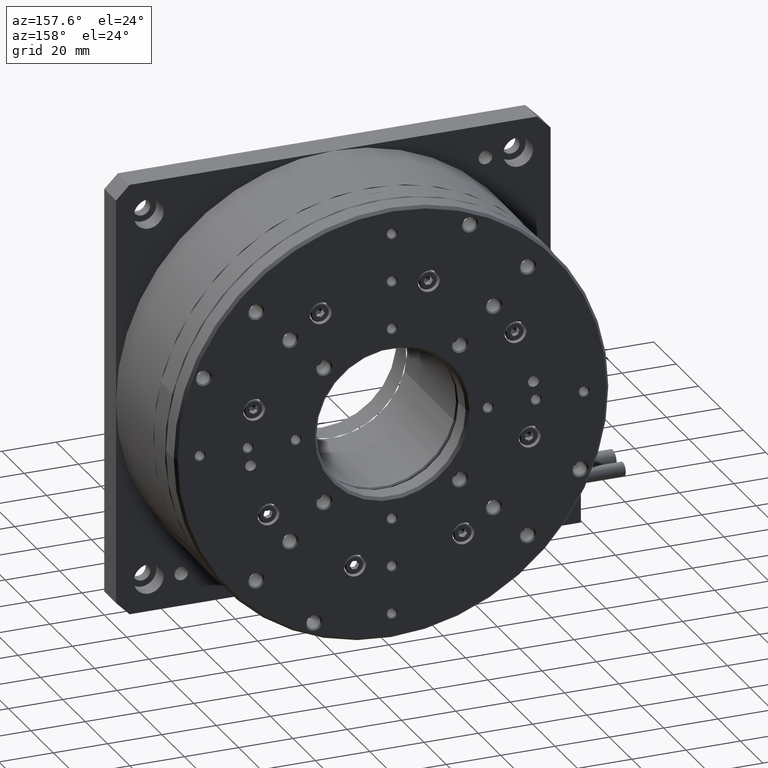
[diagram: clean part render]
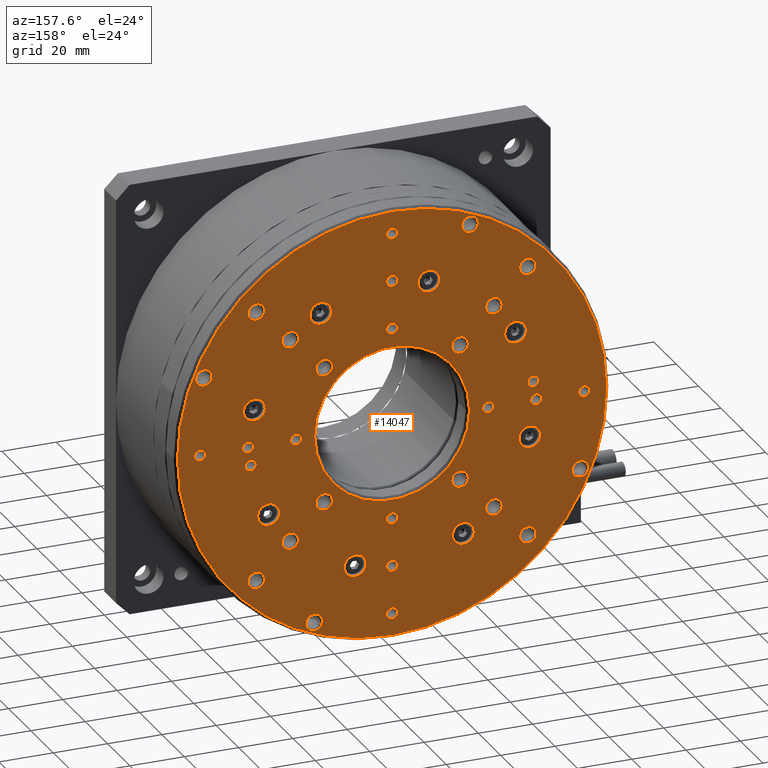
[diagram: same view with one face highlighted and labeled with its STEP entity id]
A machine part, auxiliary view. The second image highlights one B-rep face of the part: STEP entity #14047.
In plain terms, the highlighted planar face has unit normal (0, 1, -0).
Its self-contained STEP definition (entity closure, byte-faithful):
#25 = ORIENTED_EDGE ( 'NONE', *, *, #10460, .F. ) ;
#30 = DIRECTION ( 'NONE',  ( -1.000000000000000000, 0.0000000000000000000, 0.0000000000000000000 ) ) ;
#52 = DIRECTION ( 'NONE',  ( -1.000000000000000000, 0.0000000000000000000, 0.0000000000000000000 ) ) ;
#56 = DIRECTION ( 'NONE',  ( -1.000000000000000000, 0.0000000000000000000, 0.0000000000000000000 ) ) ;
#58 = VERTEX_POINT ( 'NONE', #11613 ) ;
#89 = CARTESIAN_POINT ( 'NONE',  ( 46.66966094067258600, 63.00000000000000000, -80.00000000000011400 ) ) ;
#100 = ORIENTED_EDGE ( 'NONE', *, *, #6492, .F. ) ;
#114 = AXIS2_PLACEMENT_3D ( 'NONE', #9566, #11087, #8544 ) ;
#115 = CIRCLE ( 'NONE', #16835, 79.00000000000000000 ) ;
#134 = EDGE_CURVE ( 'NONE', #4702, #17297, #4184, .T. ) ;
#154 = CARTESIAN_POINT ( 'NONE',  ( 108.0249999999999900, 62.99999999999997200, -105.0000000000001300 ) ) ;
#171 = CARTESIAN_POINT ( 'NONE',  ( 79.99999999999998600, 62.99999999999997200, -115.3553390593274800 ) ) ;
#192 = CARTESIAN_POINT ( 'NONE',  ( 130.7111058801762600, 62.99999999999997200, -66.41200013211845000 ) ) ;
#204 = ORIENTED_EDGE ( 'NONE', *, *, #7143, .T. ) ;
#225 = VERTEX_POINT ( 'NONE', #1161 ) ;
#229 = CIRCLE ( 'NONE', #1608, 28.50000000000000400 ) ;
#236 = EDGE_LOOP ( 'NONE', ( #3284, #9988 ) ) ;
#246 = DIRECTION ( 'NONE',  ( -1.000000000000000000, 0.0000000000000000000, 0.0000000000000000000 ) ) ;
#255 = DIRECTION ( 'NONE',  ( -1.000000000000000000, 0.0000000000000000000, 0.0000000000000000000 ) ) ;
#311 = CARTESIAN_POINT ( 'NONE',  ( 152.3159649383464400, 62.99999999999997200, -51.29874257261838000 ) ) ;
#315 = EDGE_CURVE ( 'NONE', #14810, #3219, #14478, .T. ) ;
#358 = CIRCLE ( 'NONE', #15688, 4.000000000000003600 ) ;
#379 = FACE_BOUND ( 'NONE', #9217, .T. ) ;
#381 = CARTESIAN_POINT ( 'NONE',  ( 79.99999999999997200, 62.99999999999998600, -80.00000000000011400 ) ) ;
#382 = ORIENTED_EDGE ( 'NONE', *, *, #3486, .F. ) ;
#409 = CIRCLE ( 'NONE', #12788, 3.024999999999999900 ) ;
#418 = CARTESIAN_POINT ( 'NONE',  ( 77.97499999999995200, 63.00000000000000000, -44.64466094067272900 ) ) ;
#438 = ORIENTED_EDGE ( 'NONE', *, *, #17068, .F. ) ;
#441 = DIRECTION ( 'NONE',  ( -1.000000000000000000, 0.0000000000000000000, 0.0000000000000000000 ) ) ;
#458 = EDGE_CURVE ( 'NONE', #3219, #14810, #13413, .T. ) ;
#489 = VERTEX_POINT ( 'NONE', #12507 ) ;
#494 = DIRECTION ( 'NONE',  ( 4.014435913841642000E-016, 1.000000000000000000, -4.301710841555254300E-016 ) ) ;
#558 = EDGE_CURVE ( 'NONE', #8777, #14308, #7084, .T. ) ;
#584 = CIRCLE ( 'NONE', #3506, 3.024999999999999900 ) ;
#602 = CIRCLE ( 'NONE', #14319, 3.024999999999999900 ) ;
#603 = DIRECTION ( 'NONE',  ( -1.000000000000000000, 0.0000000000000000000, 0.0000000000000000000 ) ) ;
#623 = ORIENTED_EDGE ( 'NONE', *, *, #13135, .F. ) ;
#665 = EDGE_LOOP ( 'NONE', ( #932, #14850 ) ) ;
#681 = CARTESIAN_POINT ( 'NONE',  ( 148.6856781186547500, 62.99999999999995700, -80.00000000000009900 ) ) ;
#711 = ORIENTED_EDGE ( 'NONE', *, *, #10161, .F. ) ;
#713 = EDGE_CURVE ( 'NONE', #14480, #14786, #2905, .T. ) ;
#715 = ORIENTED_EDGE ( 'NONE', *, *, #10185, .F. ) ;
#730 = EDGE_LOOP ( 'NONE', ( #14154, #10423 ) ) ;
#743 = CIRCLE ( 'NONE', #3924, 2.024999999999999000 ) ;
#745 = ORIENTED_EDGE ( 'NONE', *, *, #3360, .F. ) ;
#795 = EDGE_LOOP ( 'NONE', ( #15988, #2339 ) ) ;
#805 = FACE_BOUND ( 'NONE', #8850, .T. ) ;
#889 = DIRECTION ( 'NONE',  ( -1.000000000000000000, 0.0000000000000000000, 0.0000000000000000000 ) ) ;
#911 = AXIS2_PLACEMENT_3D ( 'NONE', #10697, #5234, #13454 ) ;
#918 = CARTESIAN_POINT ( 'NONE',  ( 134.0508552221250500, 62.99999999999995700, -86.85262509155288100 ) ) ;
#932 = ORIENTED_EDGE ( 'NONE', *, *, #1306, .F. ) ;
#944 = VERTEX_POINT ( 'NONE', #418 ) ;
#960 = DIRECTION ( 'NONE',  ( 4.014435913841642000E-016, 1.000000000000000000, -4.301710841555254300E-016 ) ) ;
#987 = ORIENTED_EDGE ( 'NONE', *, *, #13822, .F. ) ;
#995 = FACE_BOUND ( 'NONE', #13810, .T. ) ;
#1017 = CARTESIAN_POINT ( 'NONE',  ( 33.28889411982377300, 63.00000000000000000, -93.58799986788211800 ) ) ;
#1106 = CARTESIAN_POINT ( 'NONE',  ( 117.5000000000000100, 62.99999999999998600, -42.50000000000003600 ) ) ;
#1146 = EDGE_CURVE ( 'NONE', #3409, #15778, #12785, .T. ) ;
#1155 = EDGE_LOOP ( 'NONE', ( #100, #382 ) ) ;
#1161 = CARTESIAN_POINT ( 'NONE',  ( 39.47500000000000100, 63.00000000000001400, -42.50000000000003600 ) ) ;
#1168 = AXIS2_PLACEMENT_3D ( 'NONE', #7207, #16609, #3313 ) ;
#1209 = VERTEX_POINT ( 'NONE', #8949 ) ;
#1224 = AXIS2_PLACEMENT_3D ( 'NONE', #3146, #8227, #15034 ) ;
#1226 = CARTESIAN_POINT ( 'NONE',  ( 29.28889411982377300, 63.00000000000000000, -93.58799986788211800 ) ) ;
#1229 = FACE_BOUND ( 'NONE', #13637, .T. ) ;
#1249 = AXIS2_PLACEMENT_3D ( 'NONE', #4654, #9876, #7019 ) ;
#1256 = VERTEX_POINT ( 'NONE', #6184 ) ;
#1277 = AXIS2_PLACEMENT_3D ( 'NONE', #4985, #8971, #15711 ) ;
#1287 = ORIENTED_EDGE ( 'NONE', *, *, #8693, .F. ) ;
#1306 = EDGE_CURVE ( 'NONE', #15778, #3409, #8529, .T. ) ;
#1326 = ORIENTED_EDGE ( 'NONE', *, *, #6818, .F. ) ;
#1329 = DIRECTION ( 'NONE',  ( -1.000000000000000000, 0.0000000000000000000, 0.0000000000000000000 ) ) ;
#1368 = EDGE_LOOP ( 'NONE', ( #8497, #4565 ) ) ;
#1369 = VERTEX_POINT ( 'NONE', #14655 ) ;
#1372 = AXIS2_PLACEMENT_3D ( 'NONE', #11319, #16766, #16996 ) ;
#1496 = CIRCLE ( 'NONE', #13443, 3.024999999999999900 ) ;
#1498 = VERTEX_POINT ( 'NONE', #14711 ) ;
#1608 = AXIS2_PLACEMENT_3D ( 'NONE', #5726, #13730, #12451 ) ;
#1609 = AXIS2_PLACEMENT_3D ( 'NONE', #3304, #4652, #7558 ) ;
#1613 = EDGE_CURVE ( 'NONE', #13664, #4563, #16284, .T. ) ;
#1623 = ORIENTED_EDGE ( 'NONE', *, *, #713, .F. ) ;
#1627 = FACE_BOUND ( 'NONE', #4017, .T. ) ;
#1658 = CARTESIAN_POINT ( 'NONE',  ( 70.41200013211815200, 63.00000000000001400, -29.28889411982386900 ) ) ;
#1697 = VERTEX_POINT ( 'NONE', #12945 ) ;
#1700 = CIRCLE ( 'NONE', #6724, 3.024999999999999900 ) ;
#1714 = CARTESIAN_POINT ( 'NONE',  ( 121.4663336986829900, 62.99999999999995700, -106.2500000000001800 ) ) ;
#1723 = EDGE_CURVE ( 'NONE', #489, #14858, #11260, .T. ) ;
#1733 = CARTESIAN_POINT ( 'NONE',  ( 58.02499999999996300, 62.99999999999998600, -105.0000000000001300 ) ) ;
#1741 = CARTESIAN_POINT ( 'NONE',  ( 42.50000000000000700, 62.99999999999998600, -117.5000000000002700 ) ) ;
#1794 = EDGE_CURVE ( 'NONE', #9304, #4871, #17140, .T. ) ;
#1848 = EDGE_CURVE ( 'NONE', #11969, #9421, #9804, .T. ) ;
#1859 = VERTEX_POINT ( 'NONE', #6691 ) ;
#1862 = CARTESIAN_POINT ( 'NONE',  ( 57.74999999999973700, 62.99999999999997200, -125.4663336986830400 ) ) ;
#1890 = ORIENTED_EDGE ( 'NONE', *, *, #15766, .F. ) ;
#1896 = VERTEX_POINT ( 'NONE', #9294 ) ;
#1897 = DIRECTION ( 'NONE',  ( -1.000000000000000000, 4.014435913841638600E-016, 0.0000000000000000000 ) ) ;
#1903 = CIRCLE ( 'NONE', #11122, 3.999999999999996400 ) ;
#1969 = EDGE_LOOP ( 'NONE', ( #5956, #14286 ) ) ;
#1991 = CARTESIAN_POINT ( 'NONE',  ( 149.2909649383464300, 62.99999999999997200, -51.29874257261838000 ) ) ;
#1997 = CARTESIAN_POINT ( 'NONE',  ( 34.53366630131697000, 63.00000000000001400, -53.75000000000004300 ) ) ;
#2041 = VERTEX_POINT ( 'NONE', #16606 ) ;
#2049 = FACE_BOUND ( 'NONE', #12200, .T. ) ;
#2089 = DIRECTION ( 'NONE',  ( -1.000000000000000000, 0.0000000000000000000, 0.0000000000000000000 ) ) ;
#2156 = VERTEX_POINT ( 'NONE', #6098 ) ;
#2164 = CIRCLE ( 'NONE', #6814, 3.999999999999996400 ) ;
#2198 = DIRECTION ( 'NONE',  ( 4.014435913841642000E-016, 1.000000000000000000, -4.301710841555254300E-016 ) ) ;
#2229 = ORIENTED_EDGE ( 'NONE', *, *, #7304, .F. ) ;
#2263 = FACE_BOUND ( 'NONE', #10385, .T. ) ;
#2271 = EDGE_CURVE ( 'NONE', #2041, #2413, #5536, .T. ) ;
#2290 = CIRCLE ( 'NONE', #11248, 3.024999999999999900 ) ;
#2299 = CARTESIAN_POINT ( 'NONE',  ( 29.94914477787490600, 63.00000000000001400, -73.14737490844733300 ) ) ;
#2317 = DIRECTION ( 'NONE',  ( 4.014435913841642000E-016, 1.000000000000000000, -4.301710841555254300E-016 ) ) ;
#2322 = DIRECTION ( 'NONE',  ( 4.014435913841642000E-016, 1.000000000000000000, -4.301710841555254300E-016 ) ) ;
#2339 = ORIENTED_EDGE ( 'NONE', *, *, #1794, .F. ) ;
#2377 = ORIENTED_EDGE ( 'NONE', *, *, #7382, .F. ) ;
#2405 = CARTESIAN_POINT ( 'NONE',  ( 0.9999999999999870100, 63.00000000000001400, -80.00000000000009900 ) ) ;
#2413 = VERTEX_POINT ( 'NONE', #14727 ) ;
#2445 = DIRECTION ( 'NONE',  ( -1.000000000000000000, 0.0000000000000000000, 0.0000000000000000000 ) ) ;
#2484 = FACE_BOUND ( 'NONE', #730, .T. ) ;
#2487 = VERTEX_POINT ( 'NONE', #10737 ) ;
#2607 = DIRECTION ( 'NONE',  ( 4.014435913841642000E-016, 1.000000000000000000, -4.301710841555254300E-016 ) ) ;
#2653 = VERTEX_POINT ( 'NONE', #16645 ) ;
#2670 = AXIS2_PLACEMENT_3D ( 'NONE', #10852, #16244, #14790 ) ;
#2695 = DIRECTION ( 'NONE',  ( 4.014435913841642000E-016, 1.000000000000000000, -4.301710841555254300E-016 ) ) ;
#2750 = VERTEX_POINT ( 'NONE', #1862 ) ;
#2780 = AXIS2_PLACEMENT_3D ( 'NONE', #3064, #494, #13967 ) ;
#2782 = DIRECTION ( 'NONE',  ( -1.000000000000000000, 3.513364001978343500E-016, 0.0000000000000000000 ) ) ;
#2837 = ORIENTED_EDGE ( 'NONE', *, *, #3614, .F. ) ;
#2879 = ORIENTED_EDGE ( 'NONE', *, *, #12134, .F. ) ;
#2885 = ORIENTED_EDGE ( 'NONE', *, *, #15794, .T. ) ;
#2892 = FACE_BOUND ( 'NONE', #7997, .T. ) ;
#2905 = CIRCLE ( 'NONE', #15387, 3.025000000000000800 ) ;
#2928 = VERTEX_POINT ( 'NONE', #13536 ) ;
#2980 = DIRECTION ( 'NONE',  ( 4.014435913841642000E-016, 1.000000000000000000, -4.301710841555254300E-016 ) ) ;
#3016 = ORIENTED_EDGE ( 'NONE', *, *, #4981, .F. ) ;
#3030 = ORIENTED_EDGE ( 'NONE', *, *, #16952, .F. ) ;
#3044 = ORIENTED_EDGE ( 'NONE', *, *, #4754, .F. ) ;
#3051 = DIRECTION ( 'NONE',  ( -1.000000000000000000, 0.0000000000000000000, 0.0000000000000000000 ) ) ;
#3064 = CARTESIAN_POINT ( 'NONE',  ( 79.99999999999998600, 62.99999999999995700, -133.0330085889911500 ) ) ;
#3094 = CIRCLE ( 'NONE', #12230, 79.00000000000000000 ) ;
#3098 = FACE_BOUND ( 'NONE', #1368, .T. ) ;
#3106 = AXIS2_PLACEMENT_3D ( 'NONE', #14517, #14901, #14963 ) ;
#3108 = EDGE_CURVE ( 'NONE', #14218, #8847, #12671, .T. ) ;
#3110 = AXIS2_PLACEMENT_3D ( 'NONE', #1997, #14152, #15554 ) ;
#3120 = CARTESIAN_POINT ( 'NONE',  ( 130.0000000000000000, 62.99999999999994300, -130.0000000000001400 ) ) ;
#3146 = CARTESIAN_POINT ( 'NONE',  ( 117.5000000000000100, 62.99999999999995700, -117.5000000000002700 ) ) ;
#3202 = ORIENTED_EDGE ( 'NONE', *, *, #14121, .F. ) ;
#3216 = VERTEX_POINT ( 'NONE', #1714 ) ;
#3219 = VERTEX_POINT ( 'NONE', #4352 ) ;
#3245 = CIRCLE ( 'NONE', #7479, 2.024999999999999000 ) ;
#3284 = ORIENTED_EDGE ( 'NONE', *, *, #16884, .F. ) ;
#3304 = CARTESIAN_POINT ( 'NONE',  ( 54.99999999999997900, 63.00000000000000000, -55.00000000000012100 ) ) ;
#3313 = DIRECTION ( 'NONE',  ( -1.000000000000000000, 0.0000000000000000000, 0.0000000000000000000 ) ) ;
#3360 = EDGE_CURVE ( 'NONE', #58, #1697, #13721, .T. ) ;
#3370 = DIRECTION ( 'NONE',  ( -1.000000000000000000, 0.0000000000000000000, 0.0000000000000000000 ) ) ;
#3371 = DIRECTION ( 'NONE',  ( -1.000000000000000000, 0.0000000000000000000, 0.0000000000000000000 ) ) ;
#3375 = CARTESIAN_POINT ( 'NONE',  ( 150.7106781186547300, 62.99999999999995700, -80.00000000000009900 ) ) ;
#3400 = CARTESIAN_POINT ( 'NONE',  ( 130.7111058801762600, 62.99999999999997200, -66.41200013211845000 ) ) ;
#3409 = VERTEX_POINT ( 'NONE', #2299 ) ;
#3410 = ORIENTED_EDGE ( 'NONE', *, *, #458, .F. ) ;
#3478 = AXIS2_PLACEMENT_3D ( 'NONE', #9353, #5356, #8100 ) ;
#3486 = EDGE_CURVE ( 'NONE', #4750, #1498, #12254, .T. ) ;
#3492 = ORIENTED_EDGE ( 'NONE', *, *, #8273, .F. ) ;
#3506 = AXIS2_PLACEMENT_3D ( 'NONE', #11680, #14364, #13013 ) ;
#3523 = VERTEX_POINT ( 'NONE', #5381 ) ;
#3528 = ORIENTED_EDGE ( 'NONE', *, *, #9427, .F. ) ;
#3570 = CARTESIAN_POINT ( 'NONE',  ( 101.9749999999999900, 62.99999999999997200, -105.0000000000001300 ) ) ;
#3593 = CARTESIAN_POINT ( 'NONE',  ( 149.2909649383464300, 62.99999999999997200, -51.29874257261838000 ) ) ;
#3604 = DIRECTION ( 'NONE',  ( 4.014435913841642000E-016, 1.000000000000000000, -4.301710841555254300E-016 ) ) ;
#3614 = EDGE_CURVE ( 'NONE', #9641, #2156, #14762, .T. ) ;
#3668 = DIRECTION ( 'NONE',  ( -1.000000000000000000, 0.0000000000000000000, 0.0000000000000000000 ) ) ;
#3671 = CARTESIAN_POINT ( 'NONE',  ( 150.7106781186547300, 62.99999999999995700, -80.00000000000009900 ) ) ;
#3697 = EDGE_LOOP ( 'NONE', ( #13661, #711 ) ) ;
#3800 = EDGE_CURVE ( 'NONE', #15587, #2653, #13705, .T. ) ;
#3802 = CARTESIAN_POINT ( 'NONE',  ( 54.99999999999996400, 62.99999999999998600, -105.0000000000001300 ) ) ;
#3849 = AXIS2_PLACEMENT_3D ( 'NONE', #16866, #8568, #12664 ) ;
#3858 = CARTESIAN_POINT ( 'NONE',  ( 105.0000000000000000, 62.99999999999997200, -105.0000000000001300 ) ) ;
#3859 = CARTESIAN_POINT ( 'NONE',  ( 9.289321881345207600, 63.00000000000001400, -80.00000000000012800 ) ) ;
#3924 = AXIS2_PLACEMENT_3D ( 'NONE', #7025, #8616, #12645 ) ;
#3934 = DIRECTION ( 'NONE',  ( 4.014435913841642000E-016, 1.000000000000000000, -4.301710841555254300E-016 ) ) ;
#3942 = AXIS2_PLACEMENT_3D ( 'NONE', #4499, #13875, #15217 ) ;
#3993 = ORIENTED_EDGE ( 'NONE', *, *, #16127, .F. ) ;
#4000 = DIRECTION ( 'NONE',  ( -1.000000000000000000, 0.0000000000000000000, 0.0000000000000000000 ) ) ;
#4017 = EDGE_LOOP ( 'NONE', ( #12650, #6898 ) ) ;
#4046 = DIRECTION ( 'NONE',  ( -1.000000000000000000, 0.0000000000000000000, 0.0000000000000000000 ) ) ;
#4056 = AXIS2_PLACEMENT_3D ( 'NONE', #10806, #16312, #9704 ) ;
#4098 = EDGE_CURVE ( 'NONE', #8847, #14218, #14329, .T. ) ;
#4104 = DIRECTION ( 'NONE',  ( -1.000000000000000000, 0.0000000000000000000, 0.0000000000000000000 ) ) ;
#4150 = EDGE_LOOP ( 'NONE', ( #623, #1890 ) ) ;
#4177 = CARTESIAN_POINT ( 'NONE',  ( 126.9750000000000100, 62.99999999999998600, -30.00000000000010300 ) ) ;
#4180 = CARTESIAN_POINT ( 'NONE',  ( 135.0580085889910400, 62.99999999999997200, -80.00000000000012800 ) ) ;
#4184 = CIRCLE ( 'NONE', #12819, 3.024999999999999900 ) ;
#4223 = DIRECTION ( 'NONE',  ( 4.014435913841642000E-016, 1.000000000000000000, -4.301710841555254300E-016 ) ) ;
#4232 = DIRECTION ( 'NONE',  ( -1.000000000000000000, 0.0000000000000000000, 0.0000000000000000000 ) ) ;
#4236 = CARTESIAN_POINT ( 'NONE',  ( 79.99999999999998600, 62.99999999999995700, -133.0330085889911500 ) ) ;
#4301 = CARTESIAN_POINT ( 'NONE',  ( 25.94914477787490300, 63.00000000000001400, -73.14737490844733300 ) ) ;
#4317 = DIRECTION ( 'NONE',  ( -1.000000000000000000, 0.0000000000000000000, 0.0000000000000000000 ) ) ;
#4352 = CARTESIAN_POINT ( 'NONE',  ( 82.02499999999996300, 63.00000000000001400, -26.96699141100906900 ) ) ;
#4361 = FACE_BOUND ( 'NONE', #12976, .T. ) ;
#4378 = CARTESIAN_POINT ( 'NONE',  ( 77.97499999999999400, 62.99999999999995700, -133.0330085889911500 ) ) ;
#4394 = CARTESIAN_POINT ( 'NONE',  ( 133.0250000000000100, 62.99999999999998600, -30.00000000000010300 ) ) ;
#4405 = DIRECTION ( 'NONE',  ( 4.014435913841642000E-016, 1.000000000000000000, -4.301710841555254300E-016 ) ) ;
#4427 = AXIS2_PLACEMENT_3D ( 'NONE', #5332, #15961, #8077 ) ;
#4499 = CARTESIAN_POINT ( 'NONE',  ( 44.64466094067258700, 63.00000000000000000, -80.00000000000011400 ) ) ;
#4519 = DIRECTION ( 'NONE',  ( 4.014435913841642000E-016, 1.000000000000000000, -4.301710841555254300E-016 ) ) ;
#4563 = VERTEX_POINT ( 'NONE', #7986 ) ;
#4565 = ORIENTED_EDGE ( 'NONE', *, *, #9075, .F. ) ;
#4589 = CARTESIAN_POINT ( 'NONE',  ( 49.74999999999974400, 62.99999999999997200, -125.4663336986830400 ) ) ;
#4621 = CIRCLE ( 'NONE', #6839, 3.024999999999999900 ) ;
#4652 = DIRECTION ( 'NONE',  ( 4.014435913841642000E-016, 1.000000000000000000, -4.301710841555254300E-016 ) ) ;
#4654 = CARTESIAN_POINT ( 'NONE',  ( 125.4663336986829900, 62.99999999999995700, -106.2500000000001800 ) ) ;
#4702 = VERTEX_POINT ( 'NONE', #5780 ) ;
#4710 = EDGE_CURVE ( 'NONE', #12856, #11469, #14518, .T. ) ;
#4731 = DIRECTION ( 'NONE',  ( 4.014435913841642000E-016, 1.000000000000000000, -4.301710841555254300E-016 ) ) ;
#4750 = VERTEX_POINT ( 'NONE', #5963 ) ;
#4751 = AXIS2_PLACEMENT_3D ( 'NONE', #1741, #8519, #15176 ) ;
#4754 = EDGE_CURVE ( 'NONE', #15970, #15192, #1496, .T. ) ;
#4788 = FACE_BOUND ( 'NONE', #795, .T. ) ;
#4847 = CARTESIAN_POINT ( 'NONE',  ( 105.0000000000000000, 62.99999999999997200, -105.0000000000001300 ) ) ;
#4853 = CIRCLE ( 'NONE', #14208, 3.024999999999999900 ) ;
#4871 = VERTEX_POINT ( 'NONE', #3570 ) ;
#4882 = DIRECTION ( 'NONE',  ( -1.000000000000000000, 0.0000000000000000000, 0.0000000000000000000 ) ) ;
#4888 = DIRECTION ( 'NONE',  ( -1.000000000000000000, 0.0000000000000000000, 0.0000000000000000000 ) ) ;
#4924 = CARTESIAN_POINT ( 'NONE',  ( 39.47500000000000900, 62.99999999999998600, -117.5000000000002700 ) ) ;
#4957 = AXIS2_PLACEMENT_3D ( 'NONE', #13377, #6886, #10896 ) ;
#4977 = FACE_BOUND ( 'NONE', #10147, .T. ) ;
#4978 = EDGE_CURVE ( 'NONE', #10761, #11345, #14155, .T. ) ;
#4981 = EDGE_CURVE ( 'NONE', #2156, #9641, #9515, .T. ) ;
#4985 = CARTESIAN_POINT ( 'NONE',  ( 26.96699141100892300, 63.00000000000000000, -80.00000000000009900 ) ) ;
#5025 = CIRCLE ( 'NONE', #6884, 3.024999999999999900 ) ;
#5166 = ORIENTED_EDGE ( 'NONE', *, *, #16446, .F. ) ;
#5173 = DIRECTION ( 'NONE',  ( 4.014435913841642000E-016, 1.000000000000000000, -4.301710841555254300E-016 ) ) ;
#5197 = FACE_BOUND ( 'NONE', #7545, .T. ) ;
#5229 = CIRCLE ( 'NONE', #4957, 3.024999999999999900 ) ;
#5233 = VERTEX_POINT ( 'NONE', #4378 ) ;
#5234 = DIRECTION ( 'NONE',  ( 4.014435913841642000E-016, 1.000000000000000000, -4.301710841555254300E-016 ) ) ;
#5276 = VERTEX_POINT ( 'NONE', #12659 ) ;
#5312 = CARTESIAN_POINT ( 'NONE',  ( 79.99999999999994300, 63.00000000000001400, -9.289321881345360400 ) ) ;
#5332 = CARTESIAN_POINT ( 'NONE',  ( 34.53366630131697000, 63.00000000000001400, -53.75000000000004300 ) ) ;
#5356 = DIRECTION ( 'NONE',  ( 4.014435913841642000E-016, 1.000000000000000000, -4.301710841555254300E-016 ) ) ;
#5359 = CIRCLE ( 'NONE', #8484, 4.000000000000003600 ) ;
#5381 = CARTESIAN_POINT ( 'NONE',  ( 130.0508552221250200, 62.99999999999995700, -86.85262509155288100 ) ) ;
#5391 = DIRECTION ( 'NONE',  ( 4.014435913841642000E-016, 1.000000000000000000, -4.301710841555254300E-016 ) ) ;
#5394 = DIRECTION ( 'NONE',  ( -1.000000000000000000, 0.0000000000000000000, 0.0000000000000000000 ) ) ;
#5432 = VERTEX_POINT ( 'NONE', #7632 ) ;
#5536 = CIRCLE ( 'NONE', #1277, 2.024999999999999000 ) ;
#5571 = EDGE_CURVE ( 'NONE', #2413, #2041, #10268, .T. ) ;
#5592 = FACE_BOUND ( 'NONE', #5673, .T. ) ;
#5605 = ORIENTED_EDGE ( 'NONE', *, *, #1848, .F. ) ;
#5649 = DIRECTION ( 'NONE',  ( 4.014435913841642000E-016, 1.000000000000000000, -4.301710841555254300E-016 ) ) ;
#5659 = DIRECTION ( 'NONE',  ( -1.000000000000000000, 0.0000000000000000000, 0.0000000000000000000 ) ) ;
#5673 = EDGE_LOOP ( 'NONE', ( #14069, #11751 ) ) ;
#5698 = ORIENTED_EDGE ( 'NONE', *, *, #15582, .T. ) ;
#5726 = CARTESIAN_POINT ( 'NONE',  ( 79.99999999999997200, 62.99999999999998600, -80.00000000000011400 ) ) ;
#5746 = ORIENTED_EDGE ( 'NONE', *, *, #13039, .T. ) ;
#5780 = CARTESIAN_POINT ( 'NONE',  ( 114.4750000000000200, 62.99999999999998600, -42.50000000000003600 ) ) ;
#5791 = VERTEX_POINT ( 'NONE', #5824 ) ;
#5824 = CARTESIAN_POINT ( 'NONE',  ( 126.7111058801762600, 62.99999999999997200, -66.41200013211845000 ) ) ;
#5845 = EDGE_CURVE ( 'NONE', #1859, #2928, #9609, .T. ) ;
#5875 = ORIENTED_EDGE ( 'NONE', *, *, #3800, .F. ) ;
#5882 = ORIENTED_EDGE ( 'NONE', *, *, #13374, .F. ) ;
#5924 = VERTEX_POINT ( 'NONE', #9962 ) ;
#5934 = PLANE ( 'NONE',  #6787 ) ;
#5956 = ORIENTED_EDGE ( 'NONE', *, *, #8956, .F. ) ;
#5963 = CARTESIAN_POINT ( 'NONE',  ( 38.53366630131696300, 63.00000000000001400, -53.75000000000004300 ) ) ;
#5965 = DIRECTION ( 'NONE',  ( -1.000000000000000000, 0.0000000000000000000, 0.0000000000000000000 ) ) ;
#5984 = ORIENTED_EDGE ( 'NONE', *, *, #315, .F. ) ;
#5991 = CARTESIAN_POINT ( 'NONE',  ( 33.02499999999995600, 63.00000000000002800, -30.00000000000010300 ) ) ;
#6031 = FACE_BOUND ( 'NONE', #7761, .T. ) ;
#6033 = DIRECTION ( 'NONE',  ( 4.014435913841642000E-016, 1.000000000000000000, -4.301710841555254300E-016 ) ) ;
#6063 = EDGE_LOOP ( 'NONE', ( #5882, #3993 ) ) ;
#6069 = CIRCLE ( 'NONE', #3942, 2.024999999999999000 ) ;
#6086 = CARTESIAN_POINT ( 'NONE',  ( 7.684035061653477600, 63.00000000000000000, -108.7012574273819200 ) ) ;
#6098 = CARTESIAN_POINT ( 'NONE',  ( 25.28889411982377300, 63.00000000000000000, -93.58799986788211800 ) ) ;
#6100 = DIRECTION ( 'NONE',  ( -1.000000000000000000, 0.0000000000000000000, 0.0000000000000000000 ) ) ;
#6172 = DIRECTION ( 'NONE',  ( -1.000000000000000000, 0.0000000000000000000, 0.0000000000000000000 ) ) ;
#6181 = DIRECTION ( 'NONE',  ( 4.014435913841642000E-016, 1.000000000000000000, -4.301710841555254300E-016 ) ) ;
#6184 = CARTESIAN_POINT ( 'NONE',  ( 45.52500000000001300, 62.99999999999998600, -117.5000000000002700 ) ) ;
#6187 = DIRECTION ( 'NONE',  ( 4.014435913841642000E-016, 1.000000000000000000, -4.301710841555254300E-016 ) ) ;
#6221 = CARTESIAN_POINT ( 'NONE',  ( 66.41200013211815200, 63.00000000000001400, -29.28889411982386900 ) ) ;
#6228 = FACE_BOUND ( 'NONE', #8194, .T. ) ;
#6230 = DIRECTION ( 'NONE',  ( 4.014435913841642000E-016, 1.000000000000000000, -4.301710841555254300E-016 ) ) ;
#6241 = CARTESIAN_POINT ( 'NONE',  ( 51.29874257261816700, 63.00000000000002800, -10.70903506165361900 ) ) ;
#6264 = ORIENTED_EDGE ( 'NONE', *, *, #15959, .F. ) ;
#6272 = EDGE_CURVE ( 'NONE', #5791, #1896, #358, .T. ) ;
#6305 = AXIS2_PLACEMENT_3D ( 'NONE', #6943, #2980, #4104 ) ;
#6308 = EDGE_CURVE ( 'NONE', #5233, #5924, #14619, .T. ) ;
#6315 = CIRCLE ( 'NONE', #1249, 4.000000000000003600 ) ;
#6377 = VERTEX_POINT ( 'NONE', #12640 ) ;
#6378 = VERTEX_POINT ( 'NONE', #311 ) ;
#6433 = CIRCLE ( 'NONE', #14913, 2.025000000000000800 ) ;
#6435 = AXIS2_PLACEMENT_3D ( 'NONE', #16765, #4519, #15354 ) ;
#6461 = AXIS2_PLACEMENT_3D ( 'NONE', #3859, #14529, #14354 ) ;
#6488 = CIRCLE ( 'NONE', #6569, 2.000000000000001800 ) ;
#6492 = EDGE_CURVE ( 'NONE', #1498, #4750, #14198, .T. ) ;
#6543 = AXIS2_PLACEMENT_3D ( 'NONE', #4847, #6230, #6172 ) ;
#6556 = CARTESIAN_POINT ( 'NONE',  ( 130.0000000000000000, 62.99999999999998600, -30.00000000000010300 ) ) ;
#6559 = DIRECTION ( 'NONE',  ( 4.014435913841642000E-016, 1.000000000000000000, -4.301710841555254300E-016 ) ) ;
#6569 = AXIS2_PLACEMENT_3D ( 'NONE', #11976, #3934, #11917 ) ;
#6570 = AXIS2_PLACEMENT_3D ( 'NONE', #6241, #6181, #7529 ) ;
#6582 = CARTESIAN_POINT ( 'NONE',  ( 120.5250000000000200, 62.99999999999998600, -42.50000000000003600 ) ) ;
#6587 = DIRECTION ( 'NONE',  ( 4.014435913841642000E-016, 1.000000000000000000, -4.301710841555254300E-016 ) ) ;
#6640 = AXIS2_PLACEMENT_3D ( 'NONE', #3802, #6587, #12009 ) ;
#6690 = EDGE_CURVE ( 'NONE', #14085, #3216, #10613, .T. ) ;
#6691 = CARTESIAN_POINT ( 'NONE',  ( 120.5250000000000100, 62.99999999999995700, -117.5000000000002700 ) ) ;
#6705 = DIRECTION ( 'NONE',  ( 4.014435913841642000E-016, 1.000000000000000000, -4.301710841555254300E-016 ) ) ;
#6716 = AXIS2_PLACEMENT_3D ( 'NONE', #171, #10957, #8416 ) ;
#6724 = AXIS2_PLACEMENT_3D ( 'NONE', #3593, #10110, #3371 ) ;
#6725 = AXIS2_PLACEMENT_3D ( 'NONE', #12385, #8422, #4232 ) ;
#6742 = AXIS2_PLACEMENT_3D ( 'NONE', #13544, #13494, #16065 ) ;
#6750 = EDGE_CURVE ( 'NONE', #5924, #5233, #7008, .T. ) ;
#6759 = VERTEX_POINT ( 'NONE', #8247 ) ;
#6787 = AXIS2_PLACEMENT_3D ( 'NONE', #381, #12473, #1897 ) ;
#6814 = AXIS2_PLACEMENT_3D ( 'NONE', #17284, #6705, #2445 ) ;
#6818 = EDGE_CURVE ( 'NONE', #1896, #5791, #5359, .T. ) ;
#6839 = AXIS2_PLACEMENT_3D ( 'NONE', #14091, #6033, #603 ) ;
#6845 = DIRECTION ( 'NONE',  ( -1.000000000000000000, 0.0000000000000000000, 0.0000000000000000000 ) ) ;
#6884 = AXIS2_PLACEMENT_3D ( 'NONE', #14252, #15699, #7711 ) ;
#6886 = DIRECTION ( 'NONE',  ( 4.014435913841642000E-016, 1.000000000000000000, -4.301710841555254300E-016 ) ) ;
#6898 = ORIENTED_EDGE ( 'NONE', *, *, #11457, .F. ) ;
#6926 = EDGE_LOOP ( 'NONE', ( #16128, #8842 ) ) ;
#6943 = CARTESIAN_POINT ( 'NONE',  ( 10.70903506165347900, 63.00000000000000000, -108.7012574273819200 ) ) ;
#6967 = AXIS2_PLACEMENT_3D ( 'NONE', #6221, #2317, #10413 ) ;
#7006 = AXIS2_PLACEMENT_3D ( 'NONE', #7601, #6187, #889 ) ;
#7008 = CIRCLE ( 'NONE', #13015, 2.024999999999999000 ) ;
#7011 = CARTESIAN_POINT ( 'NONE',  ( 13.73403506165347700, 63.00000000000000000, -108.7012574273819200 ) ) ;
#7019 = DIRECTION ( 'NONE',  ( -1.000000000000000000, 0.0000000000000000000, 0.0000000000000000000 ) ) ;
#7025 = CARTESIAN_POINT ( 'NONE',  ( 115.3553390593273500, 62.99999999999997200, -80.00000000000011400 ) ) ;
#7079 = CARTESIAN_POINT ( 'NONE',  ( 82.02499999999994900, 63.00000000000000000, -44.64466094067272900 ) ) ;
#7084 = CIRCLE ( 'NONE', #14505, 2.024999999999999000 ) ;
#7143 = EDGE_CURVE ( 'NONE', #13257, #12172, #115, .T. ) ;
#7207 = CARTESIAN_POINT ( 'NONE',  ( 80.00000000000000000, 62.99999999999995700, -150.7106781186548400 ) ) ;
#7211 = DIRECTION ( 'NONE',  ( 4.014435913841642000E-016, 1.000000000000000000, -4.301710841555254300E-016 ) ) ;
#7274 = CARTESIAN_POINT ( 'NONE',  ( 106.2500000000005300, 63.00000000000000000, -34.53366630131738200 ) ) ;
#7304 = EDGE_CURVE ( 'NONE', #4563, #13664, #743, .T. ) ;
#7360 = EDGE_CURVE ( 'NONE', #13513, #8589, #3245, .T. ) ;
#7382 = EDGE_CURVE ( 'NONE', #9421, #11969, #15622, .T. ) ;
#7393 = DIRECTION ( 'NONE',  ( -1.000000000000000000, 0.0000000000000000000, 0.0000000000000000000 ) ) ;
#7396 = EDGE_LOOP ( 'NONE', ( #11000, #987 ) ) ;
#7412 = AXIS2_PLACEMENT_3D ( 'NONE', #9192, #9139, #7708 ) ;
#7414 = ORIENTED_EDGE ( 'NONE', *, *, #12105, .F. ) ;
#7437 = DIRECTION ( 'NONE',  ( 4.014435913841642000E-016, 1.000000000000000000, -4.301710841555254300E-016 ) ) ;
#7478 = CARTESIAN_POINT ( 'NONE',  ( 77.97499999999996600, 63.00000000000001400, -26.96699141100906900 ) ) ;
#7479 = AXIS2_PLACEMENT_3D ( 'NONE', #3375, #7437, #14032 ) ;
#7484 = FACE_BOUND ( 'NONE', #13720, .T. ) ;
#7494 = CIRCLE ( 'NONE', #7006, 3.024999999999999900 ) ;
#7529 = DIRECTION ( 'NONE',  ( -1.000000000000000000, 0.0000000000000000000, 0.0000000000000000000 ) ) ;
#7545 = EDGE_LOOP ( 'NONE', ( #5605, #2377 ) ) ;
#7558 = DIRECTION ( 'NONE',  ( -1.000000000000000000, 0.0000000000000000000, 0.0000000000000000000 ) ) ;
#7565 = CARTESIAN_POINT ( 'NONE',  ( 130.0000000000000000, 62.99999999999994300, -130.0000000000001400 ) ) ;
#7601 = CARTESIAN_POINT ( 'NONE',  ( 105.0000000000000000, 62.99999999999998600, -55.00000000000012100 ) ) ;
#7631 = DIRECTION ( 'NONE',  ( -1.000000000000000000, 0.0000000000000000000, 0.0000000000000000000 ) ) ;
#7632 = CARTESIAN_POINT ( 'NONE',  ( 82.02499999999999100, 62.99999999999997200, -115.3553390593274800 ) ) ;
#7681 = AXIS2_PLACEMENT_3D ( 'NONE', #7565, #11419, #4888 ) ;
#7708 = DIRECTION ( 'NONE',  ( -1.000000000000000000, 0.0000000000000000000, 0.0000000000000000000 ) ) ;
#7710 = AXIS2_PLACEMENT_3D ( 'NONE', #15007, #9694, #255 ) ;
#7711 = DIRECTION ( 'NONE',  ( -1.000000000000000000, 0.0000000000000000000, 0.0000000000000000000 ) ) ;
#7739 = ORIENTED_EDGE ( 'NONE', *, *, #15215, .F. ) ;
#7761 = EDGE_LOOP ( 'NONE', ( #5875, #3030 ) ) ;
#7762 = ORIENTED_EDGE ( 'NONE', *, *, #10578, .F. ) ;
#7840 = EDGE_LOOP ( 'NONE', ( #5698, #204 ) ) ;
#7850 = AXIS2_PLACEMENT_3D ( 'NONE', #3671, #17025, #10406 ) ;
#7899 = CARTESIAN_POINT ( 'NONE',  ( 33.02499999999995600, 62.99999999999998600, -130.0000000000001400 ) ) ;
#7986 = CARTESIAN_POINT ( 'NONE',  ( 117.3803390593273500, 62.99999999999997200, -80.00000000000011400 ) ) ;
#7997 = EDGE_LOOP ( 'NONE', ( #9015, #25 ) ) ;
#8030 = AXIS2_PLACEMENT_3D ( 'NONE', #1226, #16049, #52 ) ;
#8062 = DIRECTION ( 'NONE',  ( 4.014435913841642000E-016, 1.000000000000000000, -4.301710841555254300E-016 ) ) ;
#8077 = DIRECTION ( 'NONE',  ( -1.000000000000000000, 0.0000000000000000000, 0.0000000000000000000 ) ) ;
#8100 = DIRECTION ( 'NONE',  ( -1.000000000000000000, 0.0000000000000000000, 0.0000000000000000000 ) ) ;
#8106 = FACE_BOUND ( 'NONE', #1969, .T. ) ;
#8165 = DIRECTION ( 'NONE',  ( 4.014435913841642000E-016, 1.000000000000000000, -4.301710841555254300E-016 ) ) ;
#8192 = CARTESIAN_POINT ( 'NONE',  ( 125.4663336986829900, 62.99999999999995700, -106.2500000000001800 ) ) ;
#8194 = EDGE_LOOP ( 'NONE', ( #5984, #3410 ) ) ;
#8197 = AXIS2_PLACEMENT_3D ( 'NONE', #3858, #5173, #1329 ) ;
#8227 = DIRECTION ( 'NONE',  ( 4.014435913841642000E-016, 1.000000000000000000, -4.301710841555254300E-016 ) ) ;
#8247 = CARTESIAN_POINT ( 'NONE',  ( 51.49999999999997200, 63.00000000000000000, -80.00000000000011400 ) ) ;
#8273 = EDGE_CURVE ( 'NONE', #2750, #15943, #2164, .T. ) ;
#8325 = FACE_BOUND ( 'NONE', #3697, .T. ) ;
#8378 = AXIS2_PLACEMENT_3D ( 'NONE', #12702, #14102, #4882 ) ;
#8416 = DIRECTION ( 'NONE',  ( -1.000000000000000000, 0.0000000000000000000, 0.0000000000000000000 ) ) ;
#8422 = DIRECTION ( 'NONE',  ( 4.014435913841642000E-016, 1.000000000000000000, -4.301710841555254300E-016 ) ) ;
#8484 = AXIS2_PLACEMENT_3D ( 'NONE', #3400, #4731, #4317 ) ;
#8497 = ORIENTED_EDGE ( 'NONE', *, *, #13072, .F. ) ;
#8505 = DIRECTION ( 'NONE',  ( -1.000000000000000000, 0.0000000000000000000, 0.0000000000000000000 ) ) ;
#8519 = DIRECTION ( 'NONE',  ( 4.014435913841642000E-016, 1.000000000000000000, -4.301710841555254300E-016 ) ) ;
#8526 = FACE_BOUND ( 'NONE', #1155, .T. ) ;
#8529 = CIRCLE ( 'NONE', #7412, 2.000000000000001800 ) ;
#8544 = DIRECTION ( 'NONE',  ( -1.000000000000000000, 0.0000000000000000000, 0.0000000000000000000 ) ) ;
#8568 = DIRECTION ( 'NONE',  ( 4.014435913841642000E-016, 1.000000000000000000, -4.301710841555254300E-016 ) ) ;
#8589 = VERTEX_POINT ( 'NONE', #681 ) ;
#8616 = DIRECTION ( 'NONE',  ( 4.014435913841642000E-016, 1.000000000000000000, -4.301710841555254300E-016 ) ) ;
#8622 = ORIENTED_EDGE ( 'NONE', *, *, #5571, .F. ) ;
#8662 = EDGE_LOOP ( 'NONE', ( #13081, #8622 ) ) ;
#8693 = EDGE_CURVE ( 'NONE', #8589, #13513, #10740, .T. ) ;
#8758 = FACE_BOUND ( 'NONE', #11172, .T. ) ;
#8777 = VERTEX_POINT ( 'NONE', #89 ) ;
#8805 = CARTESIAN_POINT ( 'NONE',  ( 131.0080085889910300, 62.99999999999997200, -80.00000000000012800 ) ) ;
#8842 = ORIENTED_EDGE ( 'NONE', *, *, #12083, .F. ) ;
#8847 = VERTEX_POINT ( 'NONE', #4180 ) ;
#8850 = EDGE_LOOP ( 'NONE', ( #7762, #7739 ) ) ;
#8855 = EDGE_CURVE ( 'NONE', #14858, #489, #9914, .T. ) ;
#8870 = CARTESIAN_POINT ( 'NONE',  ( 42.50000000000000000, 63.00000000000001400, -42.50000000000003600 ) ) ;
#8922 = CARTESIAN_POINT ( 'NONE',  ( 108.0249999999999900, 62.99999999999998600, -55.00000000000012100 ) ) ;
#8949 = CARTESIAN_POINT ( 'NONE',  ( 11.31432188134520800, 63.00000000000001400, -80.00000000000012800 ) ) ;
#8956 = EDGE_CURVE ( 'NONE', #3216, #14085, #6315, .T. ) ;
#8971 = DIRECTION ( 'NONE',  ( 4.014435913841642000E-016, 1.000000000000000000, -4.301710841555254300E-016 ) ) ;
#9015 = ORIENTED_EDGE ( 'NONE', *, *, #12794, .F. ) ;
#9024 = VERTEX_POINT ( 'NONE', #10051 ) ;
#9075 = EDGE_CURVE ( 'NONE', #6378, #5276, #1700, .T. ) ;
#9139 = DIRECTION ( 'NONE',  ( 4.014435913841642000E-016, 1.000000000000000000, -4.301710841555254300E-016 ) ) ;
#9188 = FACE_BOUND ( 'NONE', #236, .T. ) ;
#9192 = CARTESIAN_POINT ( 'NONE',  ( 27.94914477787490600, 63.00000000000001400, -73.14737490844733300 ) ) ;
#9217 = EDGE_LOOP ( 'NONE', ( #12033, #12974 ) ) ;
#9279 = AXIS2_PLACEMENT_3D ( 'NONE', #15473, #14137, #5965 ) ;
#9285 = CIRCLE ( 'NONE', #3106, 3.024999999999999900 ) ;
#9294 = CARTESIAN_POINT ( 'NONE',  ( 134.7111058801762600, 62.99999999999997200, -66.41200013211845000 ) ) ;
#9304 = VERTEX_POINT ( 'NONE', #154 ) ;
#9353 = CARTESIAN_POINT ( 'NONE',  ( 132.0508552221250200, 62.99999999999995700, -86.85262509155288100 ) ) ;
#9421 = VERTEX_POINT ( 'NONE', #1733 ) ;
#9422 = EDGE_CURVE ( 'NONE', #15943, #2750, #1903, .T. ) ;
#9427 = EDGE_CURVE ( 'NONE', #15963, #10836, #11359, .T. ) ;
#9445 = VERTEX_POINT ( 'NONE', #16626 ) ;
#9515 = CIRCLE ( 'NONE', #8030, 4.000000000000000000 ) ;
#9548 = AXIS2_PLACEMENT_3D ( 'NONE', #7274, #2198, #10070 ) ;
#9566 = CARTESIAN_POINT ( 'NONE',  ( 66.41200013211815200, 63.00000000000001400, -29.28889411982386900 ) ) ;
#9609 = CIRCLE ( 'NONE', #1224, 3.024999999999999900 ) ;
#9610 = FACE_BOUND ( 'NONE', #6063, .T. ) ;
#9641 = VERTEX_POINT ( 'NONE', #1017 ) ;
#9669 = EDGE_CURVE ( 'NONE', #14730, #1256, #14895, .T. ) ;
#9694 = DIRECTION ( 'NONE',  ( 4.014435913841642000E-016, 1.000000000000000000, -4.301710841555254300E-016 ) ) ;
#9704 = DIRECTION ( 'NONE',  ( -1.000000000000000000, 0.0000000000000000000, 0.0000000000000000000 ) ) ;
#9728 = VERTEX_POINT ( 'NONE', #12460 ) ;
#9763 = AXIS2_PLACEMENT_3D ( 'NONE', #5312, #14703, #16047 ) ;
#9798 = CIRCLE ( 'NONE', #7710, 4.000000000000003600 ) ;
#9804 = CIRCLE ( 'NONE', #6640, 3.024999999999999900 ) ;
#9819 = VERTEX_POINT ( 'NONE', #4177 ) ;
#9876 = DIRECTION ( 'NONE',  ( 4.014435913841642000E-016, 1.000000000000000000, -4.301710841555254300E-016 ) ) ;
#9906 = EDGE_CURVE ( 'NONE', #9819, #16426, #4621, .T. ) ;
#9914 = CIRCLE ( 'NONE', #114, 3.999999999999996400 ) ;
#9934 = VERTEX_POINT ( 'NONE', #16709 ) ;
#9950 = CARTESIAN_POINT ( 'NONE',  ( 77.97500000000000900, 62.99999999999995700, -150.7106781186548400 ) ) ;
#9962 = CARTESIAN_POINT ( 'NONE',  ( 82.02499999999999100, 62.99999999999995700, -133.0330085889911500 ) ) ;
#9979 = DIRECTION ( 'NONE',  ( 4.014435913841642000E-016, 1.000000000000000000, -4.301710841555254300E-016 ) ) ;
#9988 = ORIENTED_EDGE ( 'NONE', *, *, #13330, .F. ) ;
#10049 = DIRECTION ( 'NONE',  ( 4.014435913841642000E-016, 1.000000000000000000, -4.301710841555254300E-016 ) ) ;
#10051 = CARTESIAN_POINT ( 'NONE',  ( 111.7262574273817700, 62.99999999999994300, -149.2909649383466000 ) ) ;
#10070 = DIRECTION ( 'NONE',  ( -1.000000000000000000, 0.0000000000000000000, 0.0000000000000000000 ) ) ;
#10084 = VERTEX_POINT ( 'NONE', #7899 ) ;
#10091 = EDGE_LOOP ( 'NONE', ( #2885, #5746 ) ) ;
#10110 = DIRECTION ( 'NONE',  ( 4.014435913841642000E-016, 1.000000000000000000, -4.301710841555254300E-016 ) ) ;
#10147 = EDGE_LOOP ( 'NONE', ( #3016, #2837 ) ) ;
#10159 = AXIS2_PLACEMENT_3D ( 'NONE', #14387, #14332, #6100 ) ;
#10161 = EDGE_CURVE ( 'NONE', #10084, #14358, #5229, .T. ) ;
#10185 = EDGE_CURVE ( 'NONE', #13914, #5432, #15705, .T. ) ;
#10236 = CARTESIAN_POINT ( 'NONE',  ( 9.289321881345207600, 63.00000000000001400, -80.00000000000012800 ) ) ;
#10268 = CIRCLE ( 'NONE', #13575, 2.024999999999999000 ) ;
#10313 = AXIS2_PLACEMENT_3D ( 'NONE', #8192, #6559, #6845 ) ;
#10326 = EDGE_LOOP ( 'NONE', ( #11549, #14202 ) ) ;
#10385 = EDGE_LOOP ( 'NONE', ( #13144, #2229 ) ) ;
#10405 = CARTESIAN_POINT ( 'NONE',  ( 26.97499999999995900, 62.99999999999998600, -130.0000000000001400 ) ) ;
#10406 = DIRECTION ( 'NONE',  ( -1.000000000000000000, 0.0000000000000000000, 0.0000000000000000000 ) ) ;
#10413 = DIRECTION ( 'NONE',  ( -1.000000000000000000, 0.0000000000000000000, 0.0000000000000000000 ) ) ;
#10423 = ORIENTED_EDGE ( 'NONE', *, *, #16329, .F. ) ;
#10458 = CARTESIAN_POINT ( 'NONE',  ( 54.32374257261817300, 63.00000000000002800, -10.70903506165361900 ) ) ;
#10460 = EDGE_CURVE ( 'NONE', #9024, #2487, #584, .T. ) ;
#10578 = EDGE_CURVE ( 'NONE', #225, #9445, #2290, .T. ) ;
#10580 = CARTESIAN_POINT ( 'NONE',  ( 26.97499999999995900, 63.00000000000002800, -30.00000000000010300 ) ) ;
#10581 = CARTESIAN_POINT ( 'NONE',  ( 42.61966094067258800, 63.00000000000000000, -80.00000000000011400 ) ) ;
#10613 = CIRCLE ( 'NONE', #10313, 4.000000000000003600 ) ;
#10615 = AXIS2_PLACEMENT_3D ( 'NONE', #10859, #14904, #5394 ) ;
#10697 = CARTESIAN_POINT ( 'NONE',  ( 42.50000000000000700, 62.99999999999998600, -117.5000000000002700 ) ) ;
#10721 = VERTEX_POINT ( 'NONE', #10580 ) ;
#10722 = CARTESIAN_POINT ( 'NONE',  ( 133.0330085889910400, 62.99999999999997200, -80.00000000000012800 ) ) ;
#10737 = CARTESIAN_POINT ( 'NONE',  ( 105.6762574273817700, 62.99999999999994300, -149.2909649383466000 ) ) ;
#10740 = CIRCLE ( 'NONE', #7850, 2.024999999999999000 ) ;
#10743 = AXIS2_PLACEMENT_3D ( 'NONE', #13807, #12707, #11219 ) ;
#10761 = VERTEX_POINT ( 'NONE', #10458 ) ;
#10806 = CARTESIAN_POINT ( 'NONE',  ( 79.99999999999995700, 63.00000000000001400, -26.96699141100906900 ) ) ;
#10836 = VERTEX_POINT ( 'NONE', #16240 ) ;
#10852 = CARTESIAN_POINT ( 'NONE',  ( 79.99999999999997200, 62.99999999999998600, -80.00000000000011400 ) ) ;
#10859 = CARTESIAN_POINT ( 'NONE',  ( 51.29874257261816700, 63.00000000000002800, -10.70903506165361900 ) ) ;
#10868 = FACE_BOUND ( 'NONE', #15188, .T. ) ;
#10869 = CIRCLE ( 'NONE', #1168, 2.024999999999999000 ) ;
#10896 = DIRECTION ( 'NONE',  ( -1.000000000000000000, 0.0000000000000000000, 0.0000000000000000000 ) ) ;
#10912 = CIRCLE ( 'NONE', #9763, 2.024999999999999000 ) ;
#10931 = CARTESIAN_POINT ( 'NONE',  ( 79.99999999999997200, 62.99999999999998600, -80.00000000000011400 ) ) ;
#10957 = DIRECTION ( 'NONE',  ( 4.014435913841642000E-016, 1.000000000000000000, -4.301710841555254300E-016 ) ) ;
#11000 = ORIENTED_EDGE ( 'NONE', *, *, #15600, .F. ) ;
#11006 = CARTESIAN_POINT ( 'NONE',  ( 152.7356781186547300, 62.99999999999995700, -80.00000000000009900 ) ) ;
#11066 = FACE_BOUND ( 'NONE', #14934, .T. ) ;
#11087 = DIRECTION ( 'NONE',  ( 4.014435913841642000E-016, 1.000000000000000000, -4.301710841555254300E-016 ) ) ;
#11121 = CIRCLE ( 'NONE', #9279, 4.000000000000003600 ) ;
#11122 = AXIS2_PLACEMENT_3D ( 'NONE', #15273, #7211, #8505 ) ;
#11127 = ORIENTED_EDGE ( 'NONE', *, *, #1723, .F. ) ;
#11172 = EDGE_LOOP ( 'NONE', ( #16900, #14511 ) ) ;
#11174 = AXIS2_PLACEMENT_3D ( 'NONE', #10722, #8165, #4046 ) ;
#11219 = DIRECTION ( 'NONE',  ( -1.000000000000000000, 0.0000000000000000000, 0.0000000000000000000 ) ) ;
#11248 = AXIS2_PLACEMENT_3D ( 'NONE', #8870, #3604, #3668 ) ;
#11260 = CIRCLE ( 'NONE', #6967, 3.999999999999996400 ) ;
#11270 = CIRCLE ( 'NONE', #17382, 3.024999999999999900 ) ;
#11280 = EDGE_CURVE ( 'NONE', #14786, #14480, #13601, .T. ) ;
#11281 = DIRECTION ( 'NONE',  ( 4.014435913841642000E-016, 1.000000000000000000, -4.301710841555254300E-016 ) ) ;
#11302 = AXIS2_PLACEMENT_3D ( 'NONE', #12313, #13777, #12382 ) ;
#11314 = CARTESIAN_POINT ( 'NONE',  ( 105.0000000000000000, 62.99999999999998600, -55.00000000000012100 ) ) ;
#11319 = CARTESIAN_POINT ( 'NONE',  ( 27.94914477787490600, 63.00000000000001400, -73.14737490844733300 ) ) ;
#11328 = ORIENTED_EDGE ( 'NONE', *, *, #7360, .F. ) ;
#11334 = DIRECTION ( 'NONE',  ( -1.000000000000000000, 0.0000000000000000000, 0.0000000000000000000 ) ) ;
#11345 = VERTEX_POINT ( 'NONE', #13537 ) ;
#11358 = ORIENTED_EDGE ( 'NONE', *, *, #6308, .F. ) ;
#11359 = CIRCLE ( 'NONE', #9548, 4.000000000000003600 ) ;
#11376 = DIRECTION ( 'NONE',  ( -1.000000000000000000, 0.0000000000000000000, 0.0000000000000000000 ) ) ;
#11419 = DIRECTION ( 'NONE',  ( 4.014435913841642000E-016, 1.000000000000000000, -4.301710841555254300E-016 ) ) ;
#11438 = DIRECTION ( 'NONE',  ( 4.014435913841642000E-016, 1.000000000000000000, -4.301710841555254300E-016 ) ) ;
#11457 = EDGE_CURVE ( 'NONE', #1256, #14730, #11736, .T. ) ;
#11469 = VERTEX_POINT ( 'NONE', #12670 ) ;
#11496 = CIRCLE ( 'NONE', #2670, 28.50000000000000400 ) ;
#11522 = EDGE_LOOP ( 'NONE', ( #15769, #1623 ) ) ;
#11549 = ORIENTED_EDGE ( 'NONE', *, *, #13982, .F. ) ;
#11558 = VERTEX_POINT ( 'NONE', #12549 ) ;
#11559 = EDGE_CURVE ( 'NONE', #4871, #9304, #15876, .T. ) ;
#11611 = CARTESIAN_POINT ( 'NONE',  ( 113.3303390593273600, 62.99999999999997200, -80.00000000000011400 ) ) ;
#11613 = CARTESIAN_POINT ( 'NONE',  ( 58.02499999999997700, 63.00000000000000000, -55.00000000000012100 ) ) ;
#11666 = DIRECTION ( 'NONE',  ( 4.014435913841642000E-016, 1.000000000000000000, -4.301710841555254300E-016 ) ) ;
#11680 = CARTESIAN_POINT ( 'NONE',  ( 108.7012574273817600, 62.99999999999994300, -149.2909649383466000 ) ) ;
#11728 = FACE_BOUND ( 'NONE', #10091, .T. ) ;
#11729 = DIRECTION ( 'NONE',  ( -1.000000000000000000, 0.0000000000000000000, 0.0000000000000000000 ) ) ;
#11736 = CIRCLE ( 'NONE', #4751, 3.024999999999999900 ) ;
#11751 = ORIENTED_EDGE ( 'NONE', *, *, #15667, .F. ) ;
#11917 = DIRECTION ( 'NONE',  ( -1.000000000000000000, 0.0000000000000000000, 0.0000000000000000000 ) ) ;
#11939 = CIRCLE ( 'NONE', #10159, 3.024999999999999900 ) ;
#11969 = VERTEX_POINT ( 'NONE', #15152 ) ;
#11976 = CARTESIAN_POINT ( 'NONE',  ( 132.0508552221250200, 62.99999999999995700, -86.85262509155288100 ) ) ;
#12009 = DIRECTION ( 'NONE',  ( -1.000000000000000000, 0.0000000000000000000, 0.0000000000000000000 ) ) ;
#12033 = ORIENTED_EDGE ( 'NONE', *, *, #3108, .F. ) ;
#12083 = EDGE_CURVE ( 'NONE', #11469, #12856, #10869, .T. ) ;
#12105 = EDGE_CURVE ( 'NONE', #10721, #17197, #602, .T. ) ;
#12134 = EDGE_CURVE ( 'NONE', #1697, #58, #11939, .T. ) ;
#12146 = CARTESIAN_POINT ( 'NONE',  ( 108.4999999999999900, 62.99999999999997200, -80.00000000000011400 ) ) ;
#12172 = VERTEX_POINT ( 'NONE', #12982 ) ;
#12200 = EDGE_LOOP ( 'NONE', ( #3044, #14910 ) ) ;
#12230 = AXIS2_PLACEMENT_3D ( 'NONE', #12942, #11666, #17033 ) ;
#12234 = EDGE_LOOP ( 'NONE', ( #715, #5166 ) ) ;
#12254 = CIRCLE ( 'NONE', #4427, 4.000000000000000000 ) ;
#12274 = DIRECTION ( 'NONE',  ( -1.000000000000000000, 0.0000000000000000000, 0.0000000000000000000 ) ) ;
#12305 = EDGE_LOOP ( 'NONE', ( #16008, #3492 ) ) ;
#12310 = EDGE_LOOP ( 'NONE', ( #438, #15989 ) ) ;
#12313 = CARTESIAN_POINT ( 'NONE',  ( 80.00000000000000000, 62.99999999999995700, -150.7106781186548400 ) ) ;
#12345 = CIRCLE ( 'NONE', #10743, 3.024999999999999900 ) ;
#12374 = CARTESIAN_POINT ( 'NONE',  ( 106.2500000000005300, 63.00000000000000000, -34.53366630131738200 ) ) ;
#12382 = DIRECTION ( 'NONE',  ( -1.000000000000000000, 0.0000000000000000000, 0.0000000000000000000 ) ) ;
#12385 = CARTESIAN_POINT ( 'NONE',  ( 79.99999999999995700, 63.00000000000001400, -26.96699141100906900 ) ) ;
#12418 = CIRCLE ( 'NONE', #10615, 3.024999999999999900 ) ;
#12451 = DIRECTION ( 'NONE',  ( -1.000000000000000000, 4.869399230812089400E-016, 0.0000000000000000000 ) ) ;
#12460 = CARTESIAN_POINT ( 'NONE',  ( 89.58799986788216100, 62.99999999999995700, -130.7111058801762600 ) ) ;
#12473 = DIRECTION ( 'NONE',  ( 4.014435913841638600E-016, 1.000000000000000000, -4.301710841555254300E-016 ) ) ;
#12507 = CARTESIAN_POINT ( 'NONE',  ( 62.41200013211815200, 63.00000000000001400, -29.28889411982386900 ) ) ;
#12549 = CARTESIAN_POINT ( 'NONE',  ( 126.9750000000000100, 62.99999999999994300, -130.0000000000001400 ) ) ;
#12609 = CARTESIAN_POINT ( 'NONE',  ( 44.64466094067258700, 63.00000000000000000, -80.00000000000011400 ) ) ;
#12640 = CARTESIAN_POINT ( 'NONE',  ( 7.264321881345206400, 63.00000000000001400, -80.00000000000012800 ) ) ;
#12645 = DIRECTION ( 'NONE',  ( -1.000000000000000000, 0.0000000000000000000, 0.0000000000000000000 ) ) ;
#12650 = ORIENTED_EDGE ( 'NONE', *, *, #9669, .F. ) ;
#12659 = CARTESIAN_POINT ( 'NONE',  ( 146.2659649383464300, 62.99999999999997200, -51.29874257261838000 ) ) ;
#12664 = DIRECTION ( 'NONE',  ( -1.000000000000000000, 0.0000000000000000000, 0.0000000000000000000 ) ) ;
#12670 = CARTESIAN_POINT ( 'NONE',  ( 82.02500000000000600, 62.99999999999995700, -150.7106781186548400 ) ) ;
#12671 = CIRCLE ( 'NONE', #14088, 2.024999999999999000 ) ;
#12702 = CARTESIAN_POINT ( 'NONE',  ( 54.99999999999996400, 62.99999999999998600, -105.0000000000001300 ) ) ;
#12707 = DIRECTION ( 'NONE',  ( 4.014435913841642000E-016, 1.000000000000000000, -4.301710841555254300E-016 ) ) ;
#12709 = EDGE_CURVE ( 'NONE', #11345, #10761, #12418, .T. ) ;
#12762 = CARTESIAN_POINT ( 'NONE',  ( 108.7012574273817600, 62.99999999999994300, -149.2909649383466000 ) ) ;
#12781 = FACE_BOUND ( 'NONE', #17330, .T. ) ;
#12785 = CIRCLE ( 'NONE', #1372, 2.000000000000001800 ) ;
#12788 = AXIS2_PLACEMENT_3D ( 'NONE', #15776, #960, #14449 ) ;
#12794 = EDGE_CURVE ( 'NONE', #2487, #9024, #4853, .T. ) ;
#12819 = AXIS2_PLACEMENT_3D ( 'NONE', #1106, #2322, #11729 ) ;
#12856 = VERTEX_POINT ( 'NONE', #9950 ) ;
#12902 = DIRECTION ( 'NONE',  ( 4.014435913841642000E-016, 1.000000000000000000, -4.301710841555254300E-016 ) ) ;
#12916 = ORIENTED_EDGE ( 'NONE', *, *, #6750, .F. ) ;
#12942 = CARTESIAN_POINT ( 'NONE',  ( 79.99999999999997200, 62.99999999999998600, -80.00000000000011400 ) ) ;
#12945 = CARTESIAN_POINT ( 'NONE',  ( 51.97499999999998000, 63.00000000000000000, -55.00000000000012100 ) ) ;
#12974 = ORIENTED_EDGE ( 'NONE', *, *, #4098, .F. ) ;
#12976 = EDGE_LOOP ( 'NONE', ( #11358, #12916 ) ) ;
#12982 = CARTESIAN_POINT ( 'NONE',  ( 158.9999999999999700, 62.99999999999995700, -80.00000000000011400 ) ) ;
#12997 = CARTESIAN_POINT ( 'NONE',  ( 77.97499999999995200, 63.00000000000001400, -9.289321881345360400 ) ) ;
#13013 = DIRECTION ( 'NONE',  ( -1.000000000000000000, 0.0000000000000000000, 0.0000000000000000000 ) ) ;
#13015 = AXIS2_PLACEMENT_3D ( 'NONE', #4236, #16291, #246 ) ;
#13039 = EDGE_CURVE ( 'NONE', #14380, #6759, #229, .T. ) ;
#13072 = EDGE_CURVE ( 'NONE', #5276, #6378, #13246, .T. ) ;
#13081 = ORIENTED_EDGE ( 'NONE', *, *, #2271, .F. ) ;
#13111 = DIRECTION ( 'NONE',  ( 4.014435913841642000E-016, 1.000000000000000000, -4.301710841555254300E-016 ) ) ;
#13135 = EDGE_CURVE ( 'NONE', #9728, #1369, #11121, .T. ) ;
#13144 = ORIENTED_EDGE ( 'NONE', *, *, #1613, .F. ) ;
#13196 = FACE_BOUND ( 'NONE', #12310, .T. ) ;
#13201 = EDGE_CURVE ( 'NONE', #17197, #10721, #5025, .T. ) ;
#13202 = CARTESIAN_POINT ( 'NONE',  ( 79.99999999999994300, 63.00000000000000000, -44.64466094067272900 ) ) ;
#13246 = CIRCLE ( 'NONE', #16466, 3.024999999999999900 ) ;
#13257 = VERTEX_POINT ( 'NONE', #2405 ) ;
#13324 = ORIENTED_EDGE ( 'NONE', *, *, #16492, .F. ) ;
#13330 = EDGE_CURVE ( 'NONE', #15612, #3523, #6488, .T. ) ;
#13374 = EDGE_CURVE ( 'NONE', #944, #15341, #13638, .T. ) ;
#13377 = CARTESIAN_POINT ( 'NONE',  ( 29.99999999999995700, 62.99999999999998600, -130.0000000000001400 ) ) ;
#13392 = FACE_BOUND ( 'NONE', #11522, .T. ) ;
#13400 = CARTESIAN_POINT ( 'NONE',  ( 26.96699141100892300, 63.00000000000000000, -80.00000000000009900 ) ) ;
#13413 = CIRCLE ( 'NONE', #6725, 2.024999999999999000 ) ;
#13443 = AXIS2_PLACEMENT_3D ( 'NONE', #11314, #13950, #14130 ) ;
#13454 = DIRECTION ( 'NONE',  ( -1.000000000000000000, 0.0000000000000000000, 0.0000000000000000000 ) ) ;
#13494 = DIRECTION ( 'NONE',  ( 4.014435913841642000E-016, 1.000000000000000000, -4.301710841555254300E-016 ) ) ;
#13513 = VERTEX_POINT ( 'NONE', #11006 ) ;
#13523 = CARTESIAN_POINT ( 'NONE',  ( 77.97499999999999400, 62.99999999999997200, -115.3553390593274800 ) ) ;
#13536 = CARTESIAN_POINT ( 'NONE',  ( 114.4750000000000100, 62.99999999999995700, -117.5000000000002700 ) ) ;
#13537 = CARTESIAN_POINT ( 'NONE',  ( 48.27374257261816800, 63.00000000000002800, -10.70903506165361900 ) ) ;
#13544 = CARTESIAN_POINT ( 'NONE',  ( 79.99999999999998600, 62.99999999999997200, -115.3553390593274800 ) ) ;
#13575 = AXIS2_PLACEMENT_3D ( 'NONE', #13400, #5391, #16196 ) ;
#13601 = CIRCLE ( 'NONE', #6305, 3.025000000000000800 ) ;
#13637 = EDGE_LOOP ( 'NONE', ( #7414, #14313 ) ) ;
#13638 = CIRCLE ( 'NONE', #17356, 2.024999999999999000 ) ;
#13661 = ORIENTED_EDGE ( 'NONE', *, *, #14212, .F. ) ;
#13664 = VERTEX_POINT ( 'NONE', #11611 ) ;
#13705 = CIRCLE ( 'NONE', #6435, 2.024999999999999000 ) ;
#13716 = CARTESIAN_POINT ( 'NONE',  ( 133.0330085889910400, 62.99999999999997200, -80.00000000000012800 ) ) ;
#13720 = EDGE_LOOP ( 'NONE', ( #3528, #13324 ) ) ;
#13721 = CIRCLE ( 'NONE', #1609, 3.024999999999999900 ) ;
#13728 = CARTESIAN_POINT ( 'NONE',  ( 29.28889411982377300, 63.00000000000000000, -93.58799986788211800 ) ) ;
#13730 = DIRECTION ( 'NONE',  ( -4.014435913841642000E-016, -1.000000000000000000, 4.301710841555254300E-016 ) ) ;
#13777 = DIRECTION ( 'NONE',  ( 4.014435913841642000E-016, 1.000000000000000000, -4.301710841555254300E-016 ) ) ;
#13788 = CARTESIAN_POINT ( 'NONE',  ( 102.2500000000005300, 63.00000000000000000, -34.53366630131738200 ) ) ;
#13807 = CARTESIAN_POINT ( 'NONE',  ( 117.5000000000000100, 62.99999999999995700, -117.5000000000002700 ) ) ;
#13810 = EDGE_LOOP ( 'NONE', ( #11127, #16310 ) ) ;
#13822 = EDGE_CURVE ( 'NONE', #1209, #6377, #13823, .T. ) ;
#13823 = CIRCLE ( 'NONE', #6461, 2.025000000000000800 ) ;
#13875 = DIRECTION ( 'NONE',  ( 4.014435913841642000E-016, 1.000000000000000000, -4.301710841555254300E-016 ) ) ;
#13883 = CIRCLE ( 'NONE', #15482, 4.000000000000003600 ) ;
#13914 = VERTEX_POINT ( 'NONE', #13523 ) ;
#13950 = DIRECTION ( 'NONE',  ( 4.014435913841642000E-016, 1.000000000000000000, -4.301710841555254300E-016 ) ) ;
#13967 = DIRECTION ( 'NONE',  ( -1.000000000000000000, 0.0000000000000000000, 0.0000000000000000000 ) ) ;
#13982 = EDGE_CURVE ( 'NONE', #2928, #1859, #12345, .T. ) ;
#14032 = DIRECTION ( 'NONE',  ( -1.000000000000000000, 0.0000000000000000000, 0.0000000000000000000 ) ) ;
#14047 = ADVANCED_FACE ( 'NONE', ( #16940, #9188, #3098, #2892, #8758, #13392, #12781, #379, #2263, #15479, #4361, #16744, #13196, #16103, #14231, #9610, #6228, #6031, #10868, #2484, #16317, #5592, #4788, #2049, #5197, #11066, #1627, #805, #8325, #1229, #15055, #7484, #995, #8526, #4977, #14834, #15266, #8106, #11728, #15680 ), #5934, .T. ) ;
#14069 = ORIENTED_EDGE ( 'NONE', *, *, #134, .F. ) ;
#14072 = CIRCLE ( 'NONE', #3478, 2.000000000000001800 ) ;
#14085 = VERTEX_POINT ( 'NONE', #15380 ) ;
#14088 = AXIS2_PLACEMENT_3D ( 'NONE', #13716, #5649, #15681 ) ;
#14091 = CARTESIAN_POINT ( 'NONE',  ( 130.0000000000000000, 62.99999999999998600, -30.00000000000010300 ) ) ;
#14102 = DIRECTION ( 'NONE',  ( 4.014435913841642000E-016, 1.000000000000000000, -4.301710841555254300E-016 ) ) ;
#14103 = DIRECTION ( 'NONE',  ( 4.014435913841642000E-016, 1.000000000000000000, -4.301710841555254300E-016 ) ) ;
#14121 = EDGE_CURVE ( 'NONE', #11558, #9934, #15935, .T. ) ;
#14130 = DIRECTION ( 'NONE',  ( -1.000000000000000000, 0.0000000000000000000, 0.0000000000000000000 ) ) ;
#14137 = DIRECTION ( 'NONE',  ( 4.014435913841642000E-016, 1.000000000000000000, -4.301710841555254300E-016 ) ) ;
#14152 = DIRECTION ( 'NONE',  ( 4.014435913841642000E-016, 1.000000000000000000, -4.301710841555254300E-016 ) ) ;
#14154 = ORIENTED_EDGE ( 'NONE', *, *, #9906, .F. ) ;
#14155 = CIRCLE ( 'NONE', #6570, 3.024999999999999900 ) ;
#14198 = CIRCLE ( 'NONE', #3110, 4.000000000000000000 ) ;
#14202 = ORIENTED_EDGE ( 'NONE', *, *, #5845, .F. ) ;
#14208 = AXIS2_PLACEMENT_3D ( 'NONE', #12762, #11281, #7393 ) ;
#14212 = EDGE_CURVE ( 'NONE', #14358, #10084, #409, .T. ) ;
#14218 = VERTEX_POINT ( 'NONE', #8805 ) ;
#14231 = FACE_BOUND ( 'NONE', #7396, .T. ) ;
#14252 = CARTESIAN_POINT ( 'NONE',  ( 29.99999999999995700, 63.00000000000002800, -30.00000000000010300 ) ) ;
#14286 = ORIENTED_EDGE ( 'NONE', *, *, #6690, .F. ) ;
#14308 = VERTEX_POINT ( 'NONE', #10581 ) ;
#14313 = ORIENTED_EDGE ( 'NONE', *, *, #13201, .F. ) ;
#14319 = AXIS2_PLACEMENT_3D ( 'NONE', #15377, #14103, #441 ) ;
#14329 = CIRCLE ( 'NONE', #11174, 2.024999999999999000 ) ;
#14332 = DIRECTION ( 'NONE',  ( 4.014435913841642000E-016, 1.000000000000000000, -4.301710841555254300E-016 ) ) ;
#14354 = DIRECTION ( 'NONE',  ( -1.000000000000000000, 0.0000000000000000000, 0.0000000000000000000 ) ) ;
#14358 = VERTEX_POINT ( 'NONE', #10405 ) ;
#14364 = DIRECTION ( 'NONE',  ( 4.014435913841642000E-016, 1.000000000000000000, -4.301710841555254300E-016 ) ) ;
#14380 = VERTEX_POINT ( 'NONE', #12146 ) ;
#14387 = CARTESIAN_POINT ( 'NONE',  ( 54.99999999999997900, 63.00000000000000000, -55.00000000000012100 ) ) ;
#14449 = DIRECTION ( 'NONE',  ( -1.000000000000000000, 0.0000000000000000000, 0.0000000000000000000 ) ) ;
#14478 = CIRCLE ( 'NONE', #4056, 2.024999999999999000 ) ;
#14480 = VERTEX_POINT ( 'NONE', #7011 ) ;
#14505 = AXIS2_PLACEMENT_3D ( 'NONE', #12609, #11438, #11376 ) ;
#14511 = ORIENTED_EDGE ( 'NONE', *, *, #4978, .F. ) ;
#14517 = CARTESIAN_POINT ( 'NONE',  ( 42.50000000000000000, 63.00000000000001400, -42.50000000000003600 ) ) ;
#14518 = CIRCLE ( 'NONE', #11302, 2.024999999999999000 ) ;
#14529 = DIRECTION ( 'NONE',  ( 4.014435913841642000E-016, 1.000000000000000000, -4.301710841555254300E-016 ) ) ;
#14619 = CIRCLE ( 'NONE', #2780, 2.024999999999999000 ) ;
#14655 = CARTESIAN_POINT ( 'NONE',  ( 97.58799986788216100, 62.99999999999995700, -130.7111058801762600 ) ) ;
#14703 = DIRECTION ( 'NONE',  ( 4.014435913841642000E-016, 1.000000000000000000, -4.301710841555254300E-016 ) ) ;
#14711 = CARTESIAN_POINT ( 'NONE',  ( 30.53366630131697000, 63.00000000000001400, -53.75000000000004300 ) ) ;
#14724 = EDGE_CURVE ( 'NONE', #15192, #15970, #7494, .T. ) ;
#14727 = CARTESIAN_POINT ( 'NONE',  ( 28.99199141100892200, 63.00000000000000000, -80.00000000000009900 ) ) ;
#14730 = VERTEX_POINT ( 'NONE', #4924 ) ;
#14762 = CIRCLE ( 'NONE', #16670, 4.000000000000000000 ) ;
#14786 = VERTEX_POINT ( 'NONE', #6086 ) ;
#14790 = DIRECTION ( 'NONE',  ( -1.000000000000000000, 4.869399230812089400E-016, 0.0000000000000000000 ) ) ;
#14810 = VERTEX_POINT ( 'NONE', #7478 ) ;
#14834 = FACE_BOUND ( 'NONE', #12305, .T. ) ;
#14850 = ORIENTED_EDGE ( 'NONE', *, *, #1146, .F. ) ;
#14858 = VERTEX_POINT ( 'NONE', #1658 ) ;
#14895 = CIRCLE ( 'NONE', #911, 3.024999999999999900 ) ;
#14901 = DIRECTION ( 'NONE',  ( 4.014435913841642000E-016, 1.000000000000000000, -4.301710841555254300E-016 ) ) ;
#14904 = DIRECTION ( 'NONE',  ( 4.014435913841642000E-016, 1.000000000000000000, -4.301710841555254300E-016 ) ) ;
#14910 = ORIENTED_EDGE ( 'NONE', *, *, #14724, .F. ) ;
#14913 = AXIS2_PLACEMENT_3D ( 'NONE', #10236, #13111, #7631 ) ;
#14934 = EDGE_LOOP ( 'NONE', ( #2879, #745 ) ) ;
#14963 = DIRECTION ( 'NONE',  ( -1.000000000000000000, 0.0000000000000000000, 0.0000000000000000000 ) ) ;
#15007 = CARTESIAN_POINT ( 'NONE',  ( 93.58799986788216100, 62.99999999999995700, -130.7111058801762600 ) ) ;
#15006 = AXIS2_PLACEMENT_3D ( 'NONE', #16711, #10049, #3370 ) ;
#15015 = DIRECTION ( 'NONE',  ( 4.014435913841642000E-016, 1.000000000000000000, -4.301710841555254300E-016 ) ) ;
#15034 = DIRECTION ( 'NONE',  ( -1.000000000000000000, 0.0000000000000000000, 0.0000000000000000000 ) ) ;
#15055 = FACE_BOUND ( 'NONE', #15249, .T. ) ;
#15141 = CARTESIAN_POINT ( 'NONE',  ( 101.9749999999999900, 62.99999999999998600, -55.00000000000012100 ) ) ;
#15152 = CARTESIAN_POINT ( 'NONE',  ( 51.97499999999996600, 62.99999999999998600, -105.0000000000001300 ) ) ;
#15176 = DIRECTION ( 'NONE',  ( -1.000000000000000000, 0.0000000000000000000, 0.0000000000000000000 ) ) ;
#15188 = EDGE_LOOP ( 'NONE', ( #3202, #6264 ) ) ;
#15192 = VERTEX_POINT ( 'NONE', #8922 ) ;
#15215 = EDGE_CURVE ( 'NONE', #9445, #225, #9285, .T. ) ;
#15217 = DIRECTION ( 'NONE',  ( -1.000000000000000000, 0.0000000000000000000, 0.0000000000000000000 ) ) ;
#15249 = EDGE_LOOP ( 'NONE', ( #16990, #1326 ) ) ;
#15266 = FACE_BOUND ( 'NONE', #4150, .T. ) ;
#15273 = CARTESIAN_POINT ( 'NONE',  ( 53.74999999999974400, 62.99999999999997200, -125.4663336986830400 ) ) ;
#15309 = DIRECTION ( 'NONE',  ( 4.014435913841642000E-016, 1.000000000000000000, -4.301710841555254300E-016 ) ) ;
#15341 = VERTEX_POINT ( 'NONE', #7079 ) ;
#15354 = DIRECTION ( 'NONE',  ( -1.000000000000000000, 0.0000000000000000000, 0.0000000000000000000 ) ) ;
#15377 = CARTESIAN_POINT ( 'NONE',  ( 29.99999999999995700, 63.00000000000002800, -30.00000000000010300 ) ) ;
#15380 = CARTESIAN_POINT ( 'NONE',  ( 129.4663336986830000, 62.99999999999995700, -106.2500000000001800 ) ) ;
#15387 = AXIS2_PLACEMENT_3D ( 'NONE', #15452, #12902, #2089 ) ;
#15452 = CARTESIAN_POINT ( 'NONE',  ( 10.70903506165347900, 63.00000000000000000, -108.7012574273819200 ) ) ;
#15473 = CARTESIAN_POINT ( 'NONE',  ( 93.58799986788216100, 62.99999999999995700, -130.7111058801762600 ) ) ;
#15479 = FACE_BOUND ( 'NONE', #6926, .T. ) ;
#15482 = AXIS2_PLACEMENT_3D ( 'NONE', #12374, #4223, #5659 ) ;
#15554 = DIRECTION ( 'NONE',  ( -1.000000000000000000, 0.0000000000000000000, 0.0000000000000000000 ) ) ;
#15582 = EDGE_CURVE ( 'NONE', #12172, #13257, #3094, .T. ) ;
#15587 = VERTEX_POINT ( 'NONE', #12997 ) ;
#15600 = EDGE_CURVE ( 'NONE', #6377, #1209, #6433, .T. ) ;
#15612 = VERTEX_POINT ( 'NONE', #918 ) ;
#15622 = CIRCLE ( 'NONE', #8378, 3.024999999999999900 ) ;
#15667 = EDGE_CURVE ( 'NONE', #17297, #4702, #11270, .T. ) ;
#15680 = FACE_OUTER_BOUND ( 'NONE', #7840, .T. ) ;
#15681 = DIRECTION ( 'NONE',  ( -1.000000000000000000, 0.0000000000000000000, 0.0000000000000000000 ) ) ;
#15688 = AXIS2_PLACEMENT_3D ( 'NONE', #192, #16084, #12274 ) ;
#15699 = DIRECTION ( 'NONE',  ( 4.014435913841642000E-016, 1.000000000000000000, -4.301710841555254300E-016 ) ) ;
#15705 = CIRCLE ( 'NONE', #6742, 2.024999999999999000 ) ;
#15711 = DIRECTION ( 'NONE',  ( -1.000000000000000000, 0.0000000000000000000, 0.0000000000000000000 ) ) ;
#15748 = CIRCLE ( 'NONE', #17291, 3.024999999999999900 ) ;
#15766 = EDGE_CURVE ( 'NONE', #1369, #9728, #9798, .T. ) ;
#15769 = ORIENTED_EDGE ( 'NONE', *, *, #11280, .F. ) ;
#15776 = CARTESIAN_POINT ( 'NONE',  ( 29.99999999999995700, 62.99999999999998600, -130.0000000000001400 ) ) ;
#15778 = VERTEX_POINT ( 'NONE', #4301 ) ;
#15794 = EDGE_CURVE ( 'NONE', #6759, #14380, #11496, .T. ) ;
#15876 = CIRCLE ( 'NONE', #6543, 3.024999999999999900 ) ;
#15925 = AXIS2_PLACEMENT_3D ( 'NONE', #3120, #15309, #11334 ) ;
#15935 = CIRCLE ( 'NONE', #7681, 3.024999999999999900 ) ;
#15943 = VERTEX_POINT ( 'NONE', #4589 ) ;
#15959 = EDGE_CURVE ( 'NONE', #9934, #11558, #16702, .T. ) ;
#15961 = DIRECTION ( 'NONE',  ( 4.014435913841642000E-016, 1.000000000000000000, -4.301710841555254300E-016 ) ) ;
#15963 = VERTEX_POINT ( 'NONE', #13788 ) ;
#15970 = VERTEX_POINT ( 'NONE', #15141 ) ;
#15988 = ORIENTED_EDGE ( 'NONE', *, *, #11559, .F. ) ;
#15989 = ORIENTED_EDGE ( 'NONE', *, *, #558, .F. ) ;
#16008 = ORIENTED_EDGE ( 'NONE', *, *, #9422, .F. ) ;
#16028 = CARTESIAN_POINT ( 'NONE',  ( 117.5000000000000100, 62.99999999999998600, -42.50000000000003600 ) ) ;
#16047 = DIRECTION ( 'NONE',  ( -1.000000000000000000, 0.0000000000000000000, 0.0000000000000000000 ) ) ;
#16049 = DIRECTION ( 'NONE',  ( 4.014435913841642000E-016, 1.000000000000000000, -4.301710841555254300E-016 ) ) ;
#16065 = DIRECTION ( 'NONE',  ( -1.000000000000000000, 0.0000000000000000000, 0.0000000000000000000 ) ) ;
#16084 = DIRECTION ( 'NONE',  ( 4.014435913841642000E-016, 1.000000000000000000, -4.301710841555254300E-016 ) ) ;
#16103 = FACE_BOUND ( 'NONE', #8662, .T. ) ;
#16127 = EDGE_CURVE ( 'NONE', #15341, #944, #16380, .T. ) ;
#16128 = ORIENTED_EDGE ( 'NONE', *, *, #4710, .F. ) ;
#16196 = DIRECTION ( 'NONE',  ( -1.000000000000000000, 0.0000000000000000000, 0.0000000000000000000 ) ) ;
#16240 = CARTESIAN_POINT ( 'NONE',  ( 110.2500000000005100, 63.00000000000000000, -34.53366630131738200 ) ) ;
#16244 = DIRECTION ( 'NONE',  ( -4.014435913841642000E-016, -1.000000000000000000, 4.301710841555254300E-016 ) ) ;
#16284 = CIRCLE ( 'NONE', #3849, 2.024999999999999000 ) ;
#16291 = DIRECTION ( 'NONE',  ( 4.014435913841642000E-016, 1.000000000000000000, -4.301710841555254300E-016 ) ) ;
#16310 = ORIENTED_EDGE ( 'NONE', *, *, #8855, .F. ) ;
#16312 = DIRECTION ( 'NONE',  ( 4.014435913841642000E-016, 1.000000000000000000, -4.301710841555254300E-016 ) ) ;
#16317 = FACE_BOUND ( 'NONE', #10326, .T. ) ;
#16329 = EDGE_CURVE ( 'NONE', #16426, #9819, #15748, .T. ) ;
#16380 = CIRCLE ( 'NONE', #15006, 2.024999999999999000 ) ;
#16426 = VERTEX_POINT ( 'NONE', #4394 ) ;
#16446 = EDGE_CURVE ( 'NONE', #5432, #13914, #16597, .T. ) ;
#16466 = AXIS2_PLACEMENT_3D ( 'NONE', #1991, #9979, #16768 ) ;
#16492 = EDGE_CURVE ( 'NONE', #10836, #15963, #13883, .T. ) ;
#16597 = CIRCLE ( 'NONE', #6716, 2.024999999999999000 ) ;
#16606 = CARTESIAN_POINT ( 'NONE',  ( 24.94199141100892400, 63.00000000000000000, -80.00000000000009900 ) ) ;
#16609 = DIRECTION ( 'NONE',  ( 4.014435913841642000E-016, 1.000000000000000000, -4.301710841555254300E-016 ) ) ;
#16626 = CARTESIAN_POINT ( 'NONE',  ( 45.52500000000000600, 63.00000000000001400, -42.50000000000003600 ) ) ;
#16645 = CARTESIAN_POINT ( 'NONE',  ( 82.02499999999994900, 63.00000000000001400, -9.289321881345360400 ) ) ;
#16670 = AXIS2_PLACEMENT_3D ( 'NONE', #13728, #4405, #3051 ) ;
#16702 = CIRCLE ( 'NONE', #15925, 3.024999999999999900 ) ;
#16709 = CARTESIAN_POINT ( 'NONE',  ( 133.0250000000000100, 62.99999999999994300, -130.0000000000001400 ) ) ;
#16711 = CARTESIAN_POINT ( 'NONE',  ( 79.99999999999994300, 63.00000000000000000, -44.64466094067272900 ) ) ;
#16744 = FACE_BOUND ( 'NONE', #12234, .T. ) ;
#16765 = CARTESIAN_POINT ( 'NONE',  ( 79.99999999999994300, 63.00000000000001400, -9.289321881345360400 ) ) ;
#16766 = DIRECTION ( 'NONE',  ( 4.014435913841642000E-016, 1.000000000000000000, -4.301710841555254300E-016 ) ) ;
#16768 = DIRECTION ( 'NONE',  ( -1.000000000000000000, 0.0000000000000000000, 0.0000000000000000000 ) ) ;
#16835 = AXIS2_PLACEMENT_3D ( 'NONE', #10931, #15015, #2782 ) ;
#16866 = CARTESIAN_POINT ( 'NONE',  ( 115.3553390593273500, 62.99999999999997200, -80.00000000000011400 ) ) ;
#16884 = EDGE_CURVE ( 'NONE', #3523, #15612, #14072, .T. ) ;
#16900 = ORIENTED_EDGE ( 'NONE', *, *, #12709, .F. ) ;
#16940 = FACE_BOUND ( 'NONE', #665, .T. ) ;
#16952 = EDGE_CURVE ( 'NONE', #2653, #15587, #10912, .T. ) ;
#16990 = ORIENTED_EDGE ( 'NONE', *, *, #6272, .F. ) ;
#16996 = DIRECTION ( 'NONE',  ( -1.000000000000000000, 0.0000000000000000000, 0.0000000000000000000 ) ) ;
#17025 = DIRECTION ( 'NONE',  ( 4.014435913841642000E-016, 1.000000000000000000, -4.301710841555254300E-016 ) ) ;
#17033 = DIRECTION ( 'NONE',  ( -1.000000000000000000, 3.513364001978343500E-016, 0.0000000000000000000 ) ) ;
#17068 = EDGE_CURVE ( 'NONE', #14308, #8777, #6069, .T. ) ;
#17140 = CIRCLE ( 'NONE', #8197, 3.024999999999999900 ) ;
#17197 = VERTEX_POINT ( 'NONE', #5991 ) ;
#17284 = CARTESIAN_POINT ( 'NONE',  ( 53.74999999999974400, 62.99999999999997200, -125.4663336986830400 ) ) ;
#17291 = AXIS2_PLACEMENT_3D ( 'NONE', #6556, #2695, #4000 ) ;
#17297 = VERTEX_POINT ( 'NONE', #6582 ) ;
#17330 = EDGE_LOOP ( 'NONE', ( #1287, #11328 ) ) ;
#17356 = AXIS2_PLACEMENT_3D ( 'NONE', #13202, #8062, #56 ) ;
#17382 = AXIS2_PLACEMENT_3D ( 'NONE', #16028, #2607, #30 ) ;